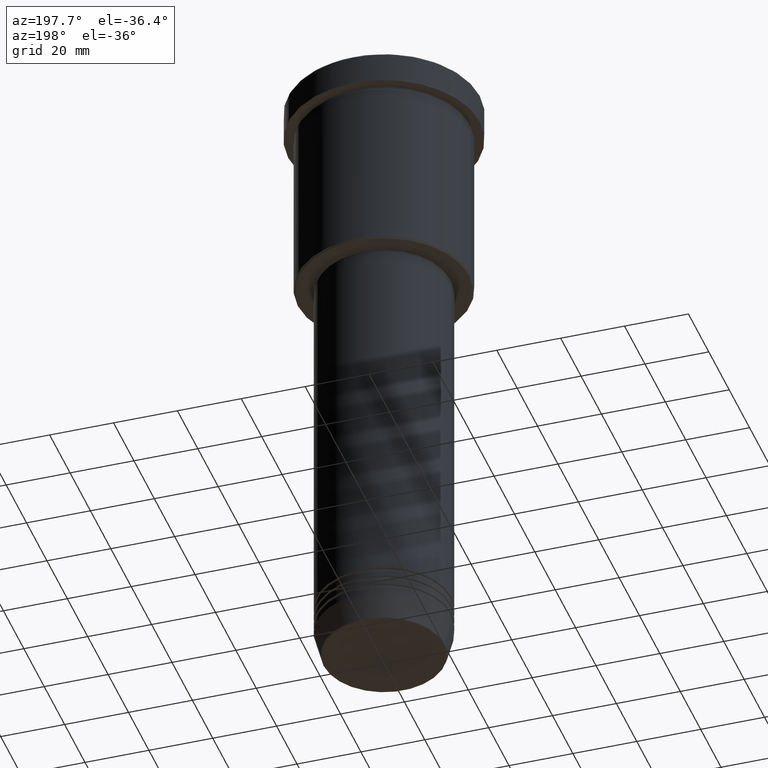
[diagram: clean part render]
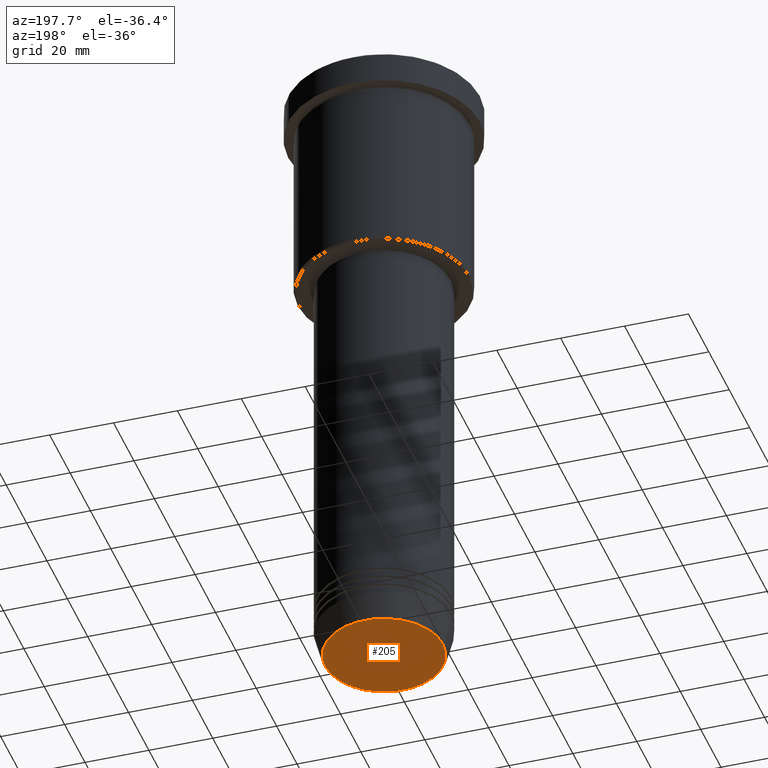
[diagram: same view with one face highlighted and labeled with its STEP entity id]
A machine part, auxiliary view. The second image highlights one B-rep face of the part: STEP entity #205.
In plain terms, the highlighted planar face has unit normal (0, -0, 1).
Its self-contained STEP definition (entity closure, byte-faithful):
#96 = ORIENTED_EDGE ( 'NONE', *, *, #901, .T. ) ;
#117 = CIRCLE ( 'NONE', #923, 18.47274296656154391 ) ;
#148 = CARTESIAN_POINT ( 'NONE',  ( -18.47274296656154391, 2.291831503831604046E-15, -201.0000000000000000 ) ) ;
#173 = AXIS2_PLACEMENT_3D ( 'NONE', #182, #1008, #1019 ) ;
#182 = CARTESIAN_POINT ( 'NONE',  ( 0.000000000000000000, 0.000000000000000000, -201.0000000000000000 ) ) ;
#205 = ADVANCED_FACE ( 'NONE', ( #1102 ), #650, .F. ) ;
#226 = CARTESIAN_POINT ( 'NONE',  ( 18.47274296656154391, 0.000000000000000000, -201.0000000000000000 ) ) ;
#229 = CARTESIAN_POINT ( 'NONE',  ( 0.000000000000000000, 0.000000000000000000, -201.0000000000000000 ) ) ;
#401 = ORIENTED_EDGE ( 'NONE', *, *, #787, .T. ) ;
#422 = VERTEX_POINT ( 'NONE', #148 ) ;
#467 = VERTEX_POINT ( 'NONE', #226 ) ;
#538 = DIRECTION ( 'NONE',  ( 1.000000000000000000, 0.000000000000000000, 0.000000000000000000 ) ) ;
#575 = AXIS2_PLACEMENT_3D ( 'NONE', #229, #604, #786 ) ;
#604 = DIRECTION ( 'NONE',  ( 0.000000000000000000, 0.000000000000000000, -1.000000000000000000 ) ) ;
#650 = PLANE ( 'NONE',  #173 ) ;
#786 = DIRECTION ( 'NONE',  ( 1.000000000000000000, 0.000000000000000000, 0.000000000000000000 ) ) ;
#787 = EDGE_CURVE ( 'NONE', #422, #467, #982, .T. ) ;
#819 = DIRECTION ( 'NONE',  ( 0.000000000000000000, 0.000000000000000000, -1.000000000000000000 ) ) ;
#901 = EDGE_CURVE ( 'NONE', #467, #422, #117, .T. ) ;
#923 = AXIS2_PLACEMENT_3D ( 'NONE', #994, #819, #538 ) ;
#982 = CIRCLE ( 'NONE', #575, 18.47274296656154391 ) ;
#994 = CARTESIAN_POINT ( 'NONE',  ( 0.000000000000000000, 0.000000000000000000, -201.0000000000000000 ) ) ;
#1008 = DIRECTION ( 'NONE',  ( 0.000000000000000000, -0.000000000000000000, 1.000000000000000000 ) ) ;
#1019 = DIRECTION ( 'NONE',  ( 1.000000000000000000, 0.000000000000000000, 0.000000000000000000 ) ) ;
#1095 = EDGE_LOOP ( 'NONE', ( #96, #401 ) ) ;
#1102 = FACE_OUTER_BOUND ( 'NONE', #1095, .T. ) ;